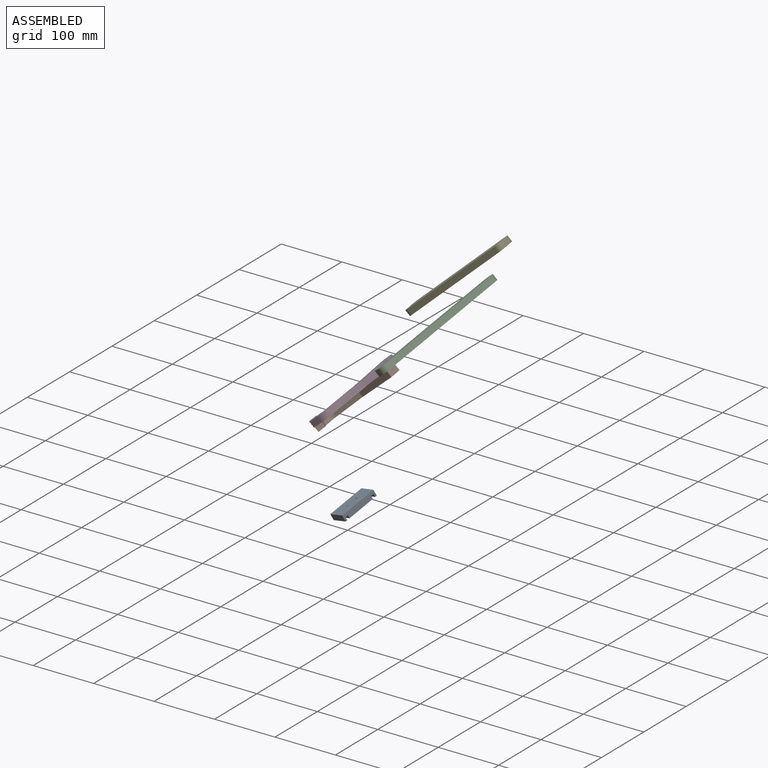
[diagram: assembled view]
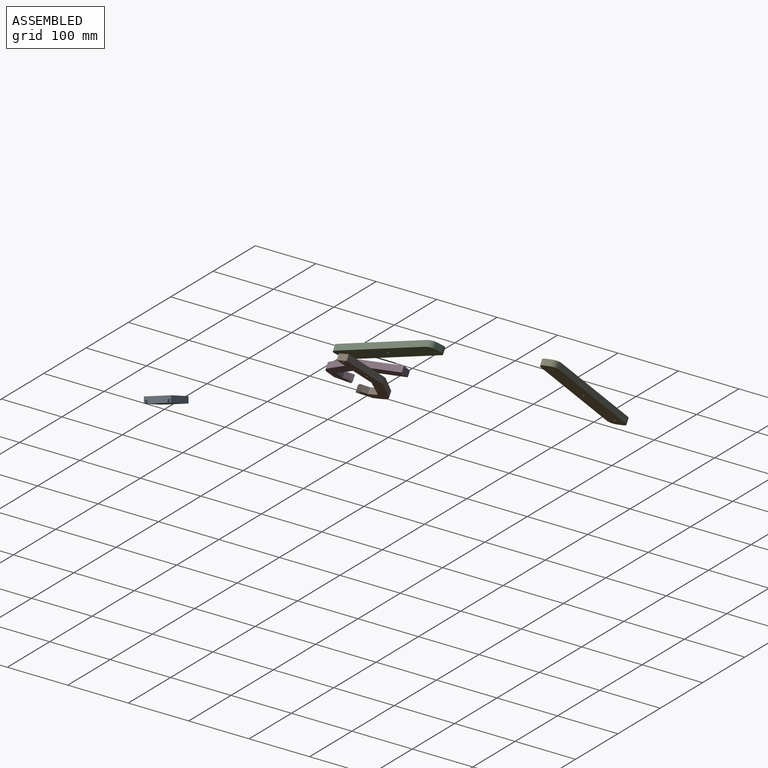
[diagram: assembled view, second angle]
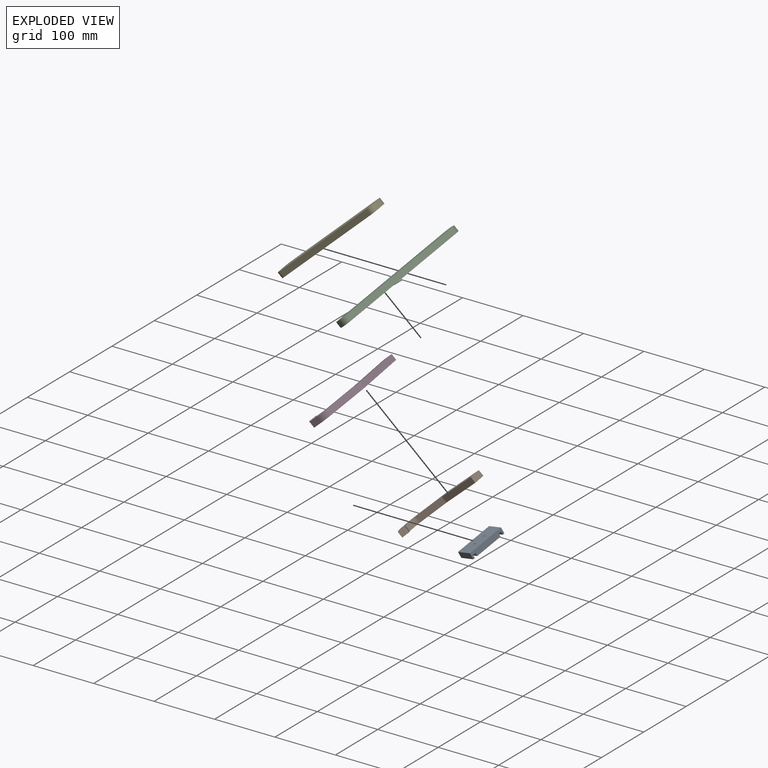
[diagram: exploded view]
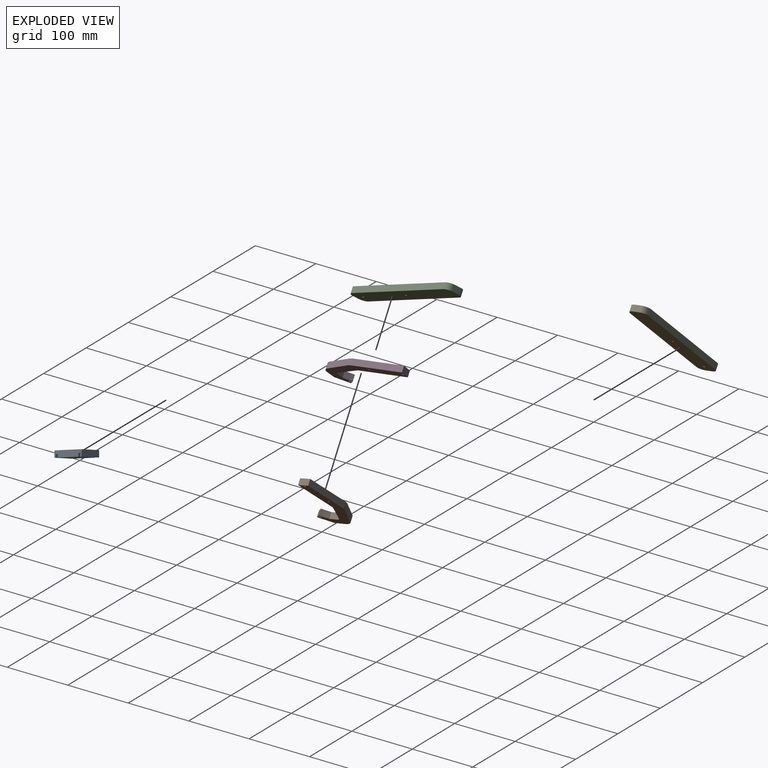
[diagram: exploded view, second angle]
ASSEMBLY  parts=5 mates=2
PART A: 16 faces, bbox 60x30x10 mm
  f0: plane 44.87x30mm, normal (0,0,-1), area 1325.7mm2, adj f2,f4,f8,f12,f14,f15
  f1: plane 30x2.94mm, normal (0,0,-1), area 88.2mm2, adj f2,f3,f4,f9
  f2: plane 60x10mm, normal (0,-1,0), area 554mm2, adj f0,f1,f3,f5,f6,f7,f8,f9
  f3: plane 30x10mm, normal (1,0,0), area 300mm2, adj f1,f2,f4,f6
  f4: plane 60x10mm, normal (0,1,0), area 554mm2, adj f0,f1,f3,f5,f6,f7,f8,f9
  f5: plane 30x10mm, normal (-1,0,0), area 300mm2, adj f2,f4,f6,f7
  f6: plane 60x30mm, normal (0,0,1), area 1779.6mm2, adj f2,f3,f4,f5,f14,f15
  f7: plane 30x2.99mm, normal (0,0,-1), area 89.8mm2, adj f2,f4,f5,f11
  f8: plane 30x5mm, normal (1,0,0), area 150mm2, adj f0,f2,f4,f10
  f9: plane 30x5mm, normal (-1,0,0), area 150mm2, adj f1,f2,f4,f10
  f10: plane 30x4.6mm, normal (0,0,-1), area 138mm2, adj f2,f4,f8,f9
  f11: plane 30x5mm, normal (1,0,0), area 150mm2, adj f2,f4,f7,f13
  f12: plane 30x5mm, normal (-1,0,0), area 150mm2, adj f0,f2,f4,f13
  f13: plane 30x4.6mm, normal (0,0,-1), area 138mm2, adj f2,f4,f11,f12
  f14: cylinder r=1.8mm len=10mm, axis (0,0,1), area 113.1mm2, adj f0,f6
  f15: cylinder r=1.8mm len=10mm, axis (0,0,1), area 113.1mm2, adj f0,f6
PART B: 27 faces, bbox 143.6x10x80.6 mm
  f0: plane 80x10mm, normal (0,0,-1), area 800mm2, adj f1,f22,f23,f24
  f1: cylinder r=17.02mm len=10mm, axis (0,1,0), area 103mm2, adj f0,f2,f23,f24
  f2: plane 43.38x24.98mm, normal (0.5,0,-0.87), area 500.6mm2, adj f1,f3,f23,f24
  f3: cylinder r=20mm len=15.55mm, axis (0,1,0), area 195.6mm2, adj f2,f4,f23,f24
  f4: plane 19.94x10mm, normal (1,0,0.08), area 200mm2, adj f3,f5,f23,f24
  f5: plane 14.34x13.94mm, normal (0.7,0,0.72), area 200mm2, adj f4,f6,f23,f24
  f6: plane 10x3.85mm, normal (0.64,0,0.77), area 50mm2, adj f5,f7,f23,f24
  f7: plane 10x1.92mm, normal (-0.77,0,0.64), area 25mm2, adj f6,f8,f23,f24
  f8: plane 10x3.85mm, normal (-0.64,0,-0.77), area 50mm2, adj f7,f9,f23,f24
  f9: plane 10x1.16mm, normal (-0.77,0,0.64), area 15.1mm2, adj f8,f10,f23,f24
  f10: plane 10x3.85mm, normal (0.64,0,0.77), area 50mm2, adj f9,f11,f23,f24
  f11: plane 10x1.92mm, normal (-0.77,0,0.64), area 25mm2, adj f10,f12,f23,f24
  f12: plane 10x3.85mm, normal (-0.64,0,-0.77), area 50mm2, adj f11,f13,f23,f24
  f13: plane 10x2.3mm, normal (-0.77,0,0.64), area 29.9mm2, adj f12,f14,f23,f24
  f14: plane 10x3.85mm, normal (0.64,0,0.77), area 50mm2, adj f13,f15,f23,f24
  f15: plane 10x1.92mm, normal (-0.77,0,0.64), area 25mm2, adj f14,f16,f23,f24
  f16: plane 10x3.85mm, normal (-0.64,0,-0.77), area 50mm2, adj f15,f17,f23,f24
  f17: plane 10x7.17mm, normal (-0.7,0,-0.72), area 100mm2, adj f16,f18,f23,f24
  f18: plane 14.96x10mm, normal (-1,0,-0.08), area 150mm2, adj f17,f19,f23,f24
  f19: cylinder r=15mm len=10mm, axis (0,1,0), area 65.2mm2, adj f18,f20,f23,f24
  f20: plane 44.22x23.33mm, normal (-0.47,0,0.88), area 500mm2, adj f19,f21,f23,f24
  f21: plane 80x10mm, normal (0,0,1), area 800mm2, adj f20,f22,f23,f24
  f22: plane 18x10mm, normal (-1,0,0), area 180mm2, adj f0,f21,f23,f24
  f23: plane 143.62x80.62mm, normal (0,-1,0), area 3048.6mm2, adj f0,f1,f2,f3,f4,f5,f6,f7
  f24: plane 143.62x80.62mm, normal (0,1,0), area 3048.6mm2, adj f0,f1,f2,f3,f4,f5,f6,f7
  f25: cylinder r=1.45mm len=10mm, axis (0,-1,0), area 91.3mm2, adj f23,f24
  f26: cylinder r=1.8mm len=10mm, axis (0,-1,0), area 113.1mm2, adj f23,f24
PART C: 12 faces, bbox 220x30x10 mm
  f0: plane 200x10mm, normal (0,-1,0), area 2000mm2, adj f1,f7,f8,f9
  f1: cylinder r=10mm len=10mm, axis (0,0,-1), area 157.1mm2, adj f0,f2,f8,f9
  f2: plane 10x10mm, normal (1,0,0), area 100mm2, adj f1,f3,f8,f9
  f3: cylinder r=10mm len=10mm, axis (0,0,-1), area 157.1mm2, adj f2,f4,f8,f9
  f4: plane 200x10mm, normal (0,1,0), area 2000mm2, adj f3,f5,f8,f9
  f5: cylinder r=10mm len=10mm, axis (0,0,-1), area 157.1mm2, adj f4,f6,f8,f9
  f6: plane 10x10mm, normal (-1,0,0), area 100mm2, adj f5,f7,f8,f9
  f7: cylinder r=10mm len=10mm, axis (0,0,-1), area 157.1mm2, adj f0,f6,f8,f9
  f8: plane 220x30mm, normal (0,0,1), area 6493.8mm2, adj f0,f1,f2,f3,f4,f5,f6,f7
  f9: plane 220x30mm, normal (0,0,-1), area 6493.8mm2, adj f0,f1,f2,f3,f4,f5,f6,f7
  f10: cylinder r=1.8mm len=10mm, axis (0,0,1), area 113.1mm2, adj f8,f9
  f11: cylinder r=1.8mm len=10mm, axis (0,0,1), area 113.1mm2, adj f8,f9
PART D: same geometry as B
PART E: same geometry as C
PLACE A rot(axis=(-0.02,-0.38,0.92),77.1deg) t=(260.43,-514.99,39.51)mm
PLACE B rot(axis=(0.31,0.74,-0.6),157deg) t=(146.92,-295.26,108.63)mm
PLACE C rot(axis=(0.39,-0.18,-0.9),116.6deg) t=(178.85,-203.38,167.13)mm
PLACE D rot(axis=(0.7,-0.63,-0.32),150.3deg) t=(106.72,-246.33,93.55)mm
PLACE E rot(axis=(0.36,0.06,-0.93),179.1deg) t=(52.18,30.92,117.96)mm
MATE revolute B.f25 <-> D.f25  axis (-0.67,-0.12,0.73) through (122.02,-276.4,95.73)mm
MATE revolute B.f26 <-> C.f11  axis (-0.67,-0.12,0.73) through (161.23,-288.19,129.83)mm
